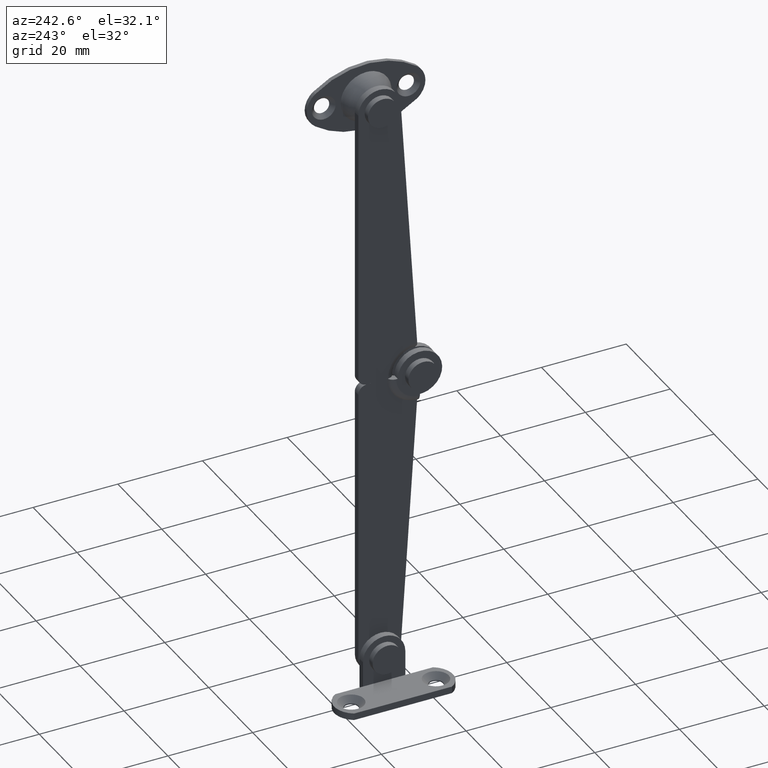
[diagram: clean part render]
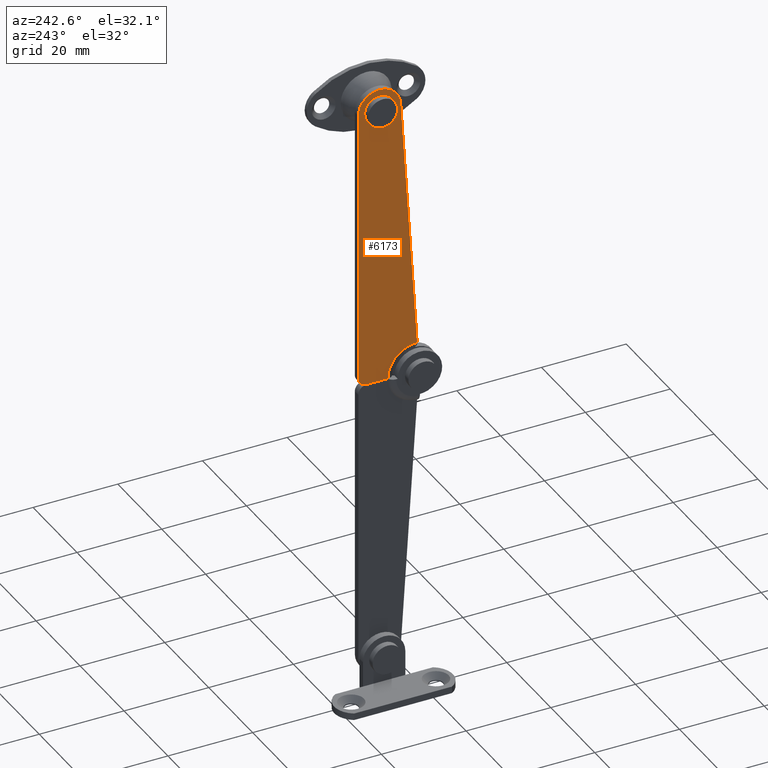
[diagram: same view with one face highlighted and labeled with its STEP entity id]
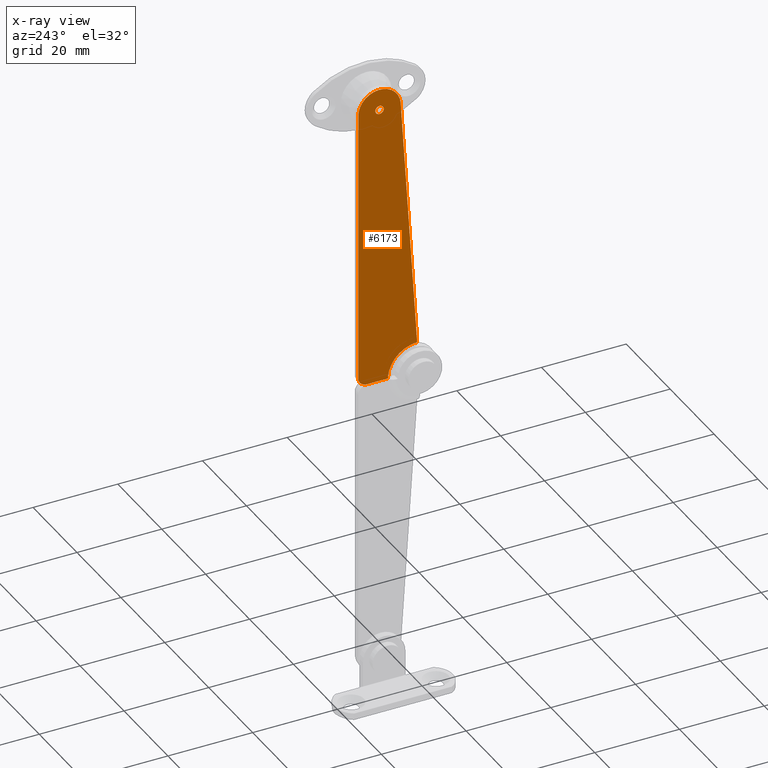
[diagram: x-ray of the same camera — body ghosted, the highlighted face saturated]
A machine part, auxiliary view. The second image highlights one B-rep face of the part: STEP entity #6173.
The next image is the same camera in x-ray: the body ghosted, the highlighted face saturated — about 0% of this face is hidden behind the body in this view.
In plain terms, the highlighted face is a freeform B-spline surface patch.
Its self-contained STEP definition (entity closure, byte-faithful):
#5275=CARTESIAN_POINT('',(4.149993999998019,9.763555934370112,67.645771764199225));
#5276=VERTEX_POINT('',#5275);
#5277=CARTESIAN_POINT('',(4.149994000000055,9.0,68.000030000000010));
#5278=VERTEX_POINT('',#5277);
#5279=CARTESIAN_POINT('',(4.149993999998019,9.763555934370112,67.645771764199225));
#5280=CARTESIAN_POINT('',(4.149993999998292,9.658590543040845,67.770446655977878));
#5281=CARTESIAN_POINT('',(4.149993999998952,9.416231546032032,67.944225588191969));
#5282=CARTESIAN_POINT('',(4.149993999999718,9.126715403344434,68.000145227767618));
#5283=CARTESIAN_POINT('',(4.149994000000055,9.0,68.000030000000010));
#5284=B_SPLINE_CURVE_WITH_KNOTS('',3,(#5279,#5280,#5281,#5282,#5283),.UNSPECIFIED.,.F.,.U.,(4,1,4),(0.000000116545128,0.488706179717207,0.868828716377395),.UNSPECIFIED.);
#5285=EDGE_CURVE('',#5276,#5278,#5284,.T.);
#5338=CARTESIAN_POINT('',(4.149994000003768,9.688354445110349,66.274655568550969));
#5339=VERTEX_POINT('',#5338);
#5345=CARTESIAN_POINT('',(4.149994000000055,9.0,66.000029999999995));
#5346=VERTEX_POINT('',#5345);
#5347=CARTESIAN_POINT('',(4.149994000000055,9.0,66.000029999999995));
#5348=CARTESIAN_POINT('',(4.149994000000656,9.110722096811045,65.999976079403140));
#5349=CARTESIAN_POINT('',(4.149994000002010,9.363762335557979,66.042480949223105));
#5350=CARTESIAN_POINT('',(4.149994000003218,9.585206654351996,66.176496414538889));
#5351=CARTESIAN_POINT('',(4.149994000003768,9.688354445110349,66.274655568550969));
#5352=B_SPLINE_CURVE_WITH_KNOTS('',3,(#5347,#5348,#5349,#5350,#5351),.UNSPECIFIED.,.F.,.U.,(4,1,4),(0.000000071943108,0.332189393608837,0.759289230294987),.UNSPECIFIED.);
#5353=EDGE_CURVE('',#5346,#5339,#5352,.T.);
#5355=CARTESIAN_POINT('',(4.149994000000055,8.000000000000018,67.000029815553631));
#5356=VERTEX_POINT('',#5355);
#5357=CARTESIAN_POINT('',(4.149994000000055,8.000000000000018,67.000029815553631));
#5358=CARTESIAN_POINT('',(4.149994000000056,7.999689045490404,66.836330124135031));
#5359=CARTESIAN_POINT('',(4.149994000000056,8.061596748346359,66.591246035317738));
#5360=CARTESIAN_POINT('',(4.149994000000062,8.280016771269834,66.281184032753131));
#5361=CARTESIAN_POINT('',(4.149994000000033,8.574715598618294,66.062586187581346));
#5362=CARTESIAN_POINT('',(4.149994000000066,8.852701307092211,65.999824425481847));
#5363=CARTESIAN_POINT('',(4.149994000000055,9.0,66.000029999999995));
#5364=B_SPLINE_CURVE_WITH_KNOTS('',3,(#5357,#5358,#5359,#5360,#5361,#5362,#5363),.UNSPECIFIED.,.F.,.U.,(4,1,1,1,4),(0.000000232849991,0.490926197147178,0.736389808752548,1.129122720947158,1.570953779327946),.UNSPECIFIED.);
#5365=EDGE_CURVE('',#5356,#5346,#5364,.T.);
#5367=CARTESIAN_POINT('',(4.149994000000055,9.0,68.000030000000010));
#5368=CARTESIAN_POINT('',(4.149994000000053,8.836303025110839,68.000338517646682));
#5369=CARTESIAN_POINT('',(4.149994000000055,8.591213166682403,67.938436172919310));
#5370=CARTESIAN_POINT('',(4.149994000000056,8.281155697364577,67.720011728837704));
#5371=CARTESIAN_POINT('',(4.149994000000055,8.062555602546849,67.425315761549768));
#5372=CARTESIAN_POINT('',(4.149994000000056,7.999794273328489,67.147325667118650));
#5373=CARTESIAN_POINT('',(4.149994000000055,8.000000000000018,67.000029815553631));
#5374=B_SPLINE_CURVE_WITH_KNOTS('',3,(#5367,#5368,#5369,#5370,#5371,#5372,#5373),.UNSPECIFIED.,.F.,.U.,(4,1,1,1,4),(0.000000231877622,0.490926261532265,0.736389906305798,1.129122870276180,1.570953987262264),.UNSPECIFIED.);
#5375=EDGE_CURVE('',#5278,#5356,#5374,.T.);
#5394=CARTESIAN_POINT('',(4.149994000000055,9.999999999999982,67.000030184446388));
#5395=VERTEX_POINT('',#5394);
#5396=CARTESIAN_POINT('',(4.149994000000055,9.999999999999982,67.000030184446388));
#5397=CARTESIAN_POINT('',(4.149993999999644,10.000147008828639,67.131679835892982));
#5398=CARTESIAN_POINT('',(4.149993999998894,9.953078406416129,67.365534152063077));
#5399=CARTESIAN_POINT('',(4.149993999998277,9.829699448529896,67.567629615610443));
#5400=CARTESIAN_POINT('',(4.149993999998019,9.763555934370112,67.645771764199225));
#5401=B_SPLINE_CURVE_WITH_KNOTS('',3,(#5396,#5397,#5398,#5399,#5400),.UNSPECIFIED.,.F.,.U.,(4,1,4),(0.000000097202338,0.394893671305865,0.702050397232914),.UNSPECIFIED.);
#5402=EDGE_CURVE('',#5395,#5276,#5401,.T.);
#5404=CARTESIAN_POINT('',(4.149994000003768,9.688354445110349,66.274655568550969));
#5405=CARTESIAN_POINT('',(4.149994000003237,9.798961082762830,66.379247207275071));
#5406=CARTESIAN_POINT('',(4.149994000002040,9.951392898931594,66.611194316313401));
#5407=CARTESIAN_POINT('',(4.149994000000658,10.000089445272200,66.881671326255201));
#5408=CARTESIAN_POINT('',(4.149994000000055,9.999999999999982,67.000030184446388));
#5409=B_SPLINE_CURVE_WITH_KNOTS('',3,(#5404,#5405,#5406,#5407,#5408),.UNSPECIFIED.,.F.,.U.,(4,1,4),(0.000000100791234,0.456561343524045,0.811665313370158),.UNSPECIFIED.);
#5410=EDGE_CURVE('',#5339,#5395,#5409,.T.);
#5709=CARTESIAN_POINT('',(4.149994000000104,0.113150020728135,7.001584790181060));
#5710=VERTEX_POINT('',#5709);
#5721=CARTESIAN_POINT('',(4.149994000000104,7.002499018299500,-1.286296E-015));
#5722=VERTEX_POINT('',#5721);
#5723=CARTESIAN_POINT('',(4.149994000000104,0.113150020728135,7.001584790181060));
#5724=CARTESIAN_POINT('',(4.149994000000107,0.566681986192898,6.994288561602878));
#5725=CARTESIAN_POINT('',(4.149994000000107,1.585560340846679,6.878354823805895));
#5726=CARTESIAN_POINT('',(4.149994000000098,2.881554190496851,6.431638042281028));
#5727=CARTESIAN_POINT('',(4.149994000000136,4.135096462990080,5.703377257522812));
#5728=CARTESIAN_POINT('',(4.149994000000042,5.083645140344927,4.880596710697934));
#5729=CARTESIAN_POINT('',(4.149994000000146,5.992586467997269,3.714087086971047));
#5730=CARTESIAN_POINT('',(4.149994000000080,6.768517491291588,2.154310834558496));
#5731=CARTESIAN_POINT('',(4.149994000000109,7.003061141324282,0.793863392475671));
#5732=CARTESIAN_POINT('',(4.149994000000104,7.002499018299500,-1.286296E-015));
#5733=B_SPLINE_CURVE_WITH_KNOTS('',3,(#5723,#5724,#5725,#5726,#5727,#5728,#5729,#5730,#5731,#5732),.UNSPECIFIED.,.F.,.U.,(4,1,1,1,1,1,1,4),(0.000000168391496,1.360791377697494,3.061809649063542,4.082435467169973,5.698348518272635,6.803979301128321,8.505010363762054,10.886411700271969),.UNSPECIFIED.);
#5734=EDGE_CURVE('',#5710,#5722,#5733,.T.);
#5919=CARTESIAN_POINT('',(4.149994000000055,11.999969000000000,-2.204286E-015));
#5920=VERTEX_POINT('',#5919);
#5928=CARTESIAN_POINT('',(4.149994000000055,14.0,2.0));
#5929=VERTEX_POINT('',#5928);
#5930=CARTESIAN_POINT('',(4.149994000000055,14.0,2.0));
#5931=CARTESIAN_POINT('',(4.149994000000055,14.000074479252580,1.787298684452059));
#5932=CARTESIAN_POINT('',(4.149994000000056,13.923742657201490,1.312725688523535));
#5933=CARTESIAN_POINT('',(4.149994000000052,13.594955121552440,0.732261873100067));
#5934=CARTESIAN_POINT('',(4.149994000000056,13.174144600366340,0.360535137513037));
#5935=CARTESIAN_POINT('',(4.149994000000055,12.670598175045059,0.083296453244713));
#5936=CARTESIAN_POINT('',(4.149994000000061,12.278215214019520,-0.000386733161265));
#5937=CARTESIAN_POINT('',(4.149994000000055,11.999969000000000,-2.204286E-015));
#5938=B_SPLINE_CURVE_WITH_KNOTS('',3,(#5930,#5931,#5932,#5933,#5934,#5935,#5936,#5937),.UNSPECIFIED.,.F.,.U.,(4,1,1,1,1,4),(0.000000310909303,0.638153656840623,1.423596084337921,1.963523907425967,2.307174980784292,3.141688961390946),.UNSPECIFIED.);
#5939=EDGE_CURVE('',#5929,#5920,#5938,.T.);
#5975=CARTESIAN_POINT('',(4.149994000000104,7.002499018299500,-1.286296E-015));
#5976=CARTESIAN_POINT('',(4.149994000000055,11.999969000000000,-2.204286E-015));
#5977=QUASI_UNIFORM_CURVE('',1,(#5975,#5976),.UNSPECIFIED.,.F.,.U.);
#5978=EDGE_CURVE('',#5722,#5920,#5977,.T.);
#6002=CARTESIAN_POINT('',(4.149994000000055,4.010376000000001,67.322387000000091));
#6003=VERTEX_POINT('',#6002);
#6009=CARTESIAN_POINT('',(4.149994000000055,4.010376000000001,67.322387000000091));
#6010=CARTESIAN_POINT('',(4.149994000000104,0.113150020728135,7.001584790181060));
#6011=QUASI_UNIFORM_CURVE('',1,(#6009,#6010),.UNSPECIFIED.,.F.,.U.);
#6012=EDGE_CURVE('',#6003,#5710,#6011,.T.);
#6044=CARTESIAN_POINT('',(4.149994000000055,14.0,67.000029999999995));
#6045=VERTEX_POINT('',#6044);
#6053=CARTESIAN_POINT('',(4.149994000000055,9.161251139293951,71.997428857317587));
#6054=VERTEX_POINT('',#6053);
#6055=CARTESIAN_POINT('',(4.149994000000055,9.161251139293951,71.997428857317587));
#6056=CARTESIAN_POINT('',(4.149994000000046,9.541689232906467,71.985233517784778));
#6057=CARTESIAN_POINT('',(4.149994000000073,10.259798962589180,71.879179509010100));
#6058=CARTESIAN_POINT('',(4.149994000000050,11.182322042389259,71.528992183409486));
#6059=CARTESIAN_POINT('',(4.149994000000060,11.973643728432290,71.051293425995723));
#6060=CARTESIAN_POINT('',(4.149994000000051,12.686428627968850,70.429457171795974));
#6061=CARTESIAN_POINT('',(4.149994000000027,13.344207309269660,69.562638826559933));
#6062=CARTESIAN_POINT('',(4.149994000000181,13.863383568404320,68.402232727408148));
#6063=CARTESIAN_POINT('',(4.149993999999855,14.000230750969459,67.500876222595451));
#6064=CARTESIAN_POINT('',(4.149994000000055,14.0,67.000029999999995));
#6065=B_SPLINE_CURVE_WITH_KNOTS('',3,(#6055,#6056,#6057,#6058,#6059,#6060,#6061,#6062,#6063,#6064),.UNSPECIFIED.,.F.,.U.,(4,1,1,1,1,1,1,4),(0.000000180029407,1.141885685575329,2.163585891597725,2.944888412760718,3.906413866550111,4.988249334856167,6.190266212550676,7.692743177836275),.UNSPECIFIED.);
#6066=EDGE_CURVE('',#6054,#6045,#6065,.T.);
#6068=CARTESIAN_POINT('',(4.149994000000055,4.010376000000001,67.322387000000091));
#6069=CARTESIAN_POINT('',(4.149994000000048,4.051080051903175,67.962242196652042));
#6070=CARTESIAN_POINT('',(4.149994000000063,4.342395946983221,69.067132066477228));
#6071=CARTESIAN_POINT('',(4.149994000000048,5.202681073267486,70.342538848171557));
#6072=CARTESIAN_POINT('',(4.149994000000046,6.072810247589043,71.094712562390953));
#6073=CARTESIAN_POINT('',(4.149994000000040,6.999864510855751,71.618949409766017));
#6074=CARTESIAN_POINT('',(4.149994000000078,7.997055406506194,71.945346546339294));
#6075=CARTESIAN_POINT('',(4.149994000000042,8.780825376140804,72.009766266141540));
#6076=CARTESIAN_POINT('',(4.149994000000055,9.161251139293951,71.997428857317587));
#6077=B_SPLINE_CURVE_WITH_KNOTS('',3,(#6068,#6069,#6070,#6071,#6072,#6073,#6074,#6075,#6076),.UNSPECIFIED.,.F.,.U.,(4,1,1,1,1,1,4),(0.000000180035374,1.923187114376647,3.365617797319415,4.567530561525240,5.348851786453495,6.550869370707122,7.692747699474824),.UNSPECIFIED.);
#6078=EDGE_CURVE('',#6003,#6054,#6077,.T.);
#6121=CARTESIAN_POINT('',(4.149994000000055,14.0,2.0));
#6122=CARTESIAN_POINT('',(4.149994000000055,14.0,67.000029999999995));
#6123=QUASI_UNIFORM_CURVE('',1,(#6121,#6122),.UNSPECIFIED.,.F.,.U.);
#6124=EDGE_CURVE('',#5929,#6045,#6123,.T.);
#6151=CARTESIAN_POINT('',(4.149994000000104,14.693648129549221,-3.596356830706656));
#6152=CARTESIAN_POINT('',(4.149994000000104,-0.580498481295428,-3.596356830706656));
#6153=CARTESIAN_POINT('',(4.149994000000104,14.693648129549221,75.595497305404621));
#6154=CARTESIAN_POINT('',(4.149994000000104,-0.580498481295428,75.595497305404621));
#6155=B_SPLINE_SURFACE_WITH_KNOTS('',1,1,((#6151,#6153),(#6152,#6154)),.UNSPECIFIED.,.F.,.F.,.U.,(2,2),(2,2),(0.0,15.274146610844650),(0.0,79.191854136111274),.UNSPECIFIED.);
#6156=ORIENTED_EDGE('',*,*,#6012,.F.);
#6157=ORIENTED_EDGE('',*,*,#6078,.T.);
#6158=ORIENTED_EDGE('',*,*,#6066,.T.);
#6159=ORIENTED_EDGE('',*,*,#6124,.F.);
#6160=ORIENTED_EDGE('',*,*,#5939,.T.);
#6161=ORIENTED_EDGE('',*,*,#5978,.F.);
#6162=ORIENTED_EDGE('',*,*,#5734,.F.);
#6163=EDGE_LOOP('',(#6156,#6157,#6158,#6159,#6160,#6161,#6162));
#6164=FACE_OUTER_BOUND('',#6163,.T.);
#6165=ORIENTED_EDGE('',*,*,#5375,.T.);
#6166=ORIENTED_EDGE('',*,*,#5365,.T.);
#6167=ORIENTED_EDGE('',*,*,#5353,.T.);
#6168=ORIENTED_EDGE('',*,*,#5410,.T.);
#6169=ORIENTED_EDGE('',*,*,#5402,.T.);
#6170=ORIENTED_EDGE('',*,*,#5285,.T.);
#6171=EDGE_LOOP('',(#6165,#6166,#6167,#6168,#6169,#6170));
#6172=FACE_BOUND('',#6171,.T.);
#6173=ADVANCED_FACE('',(#6164,#6172),#6155,.T.);